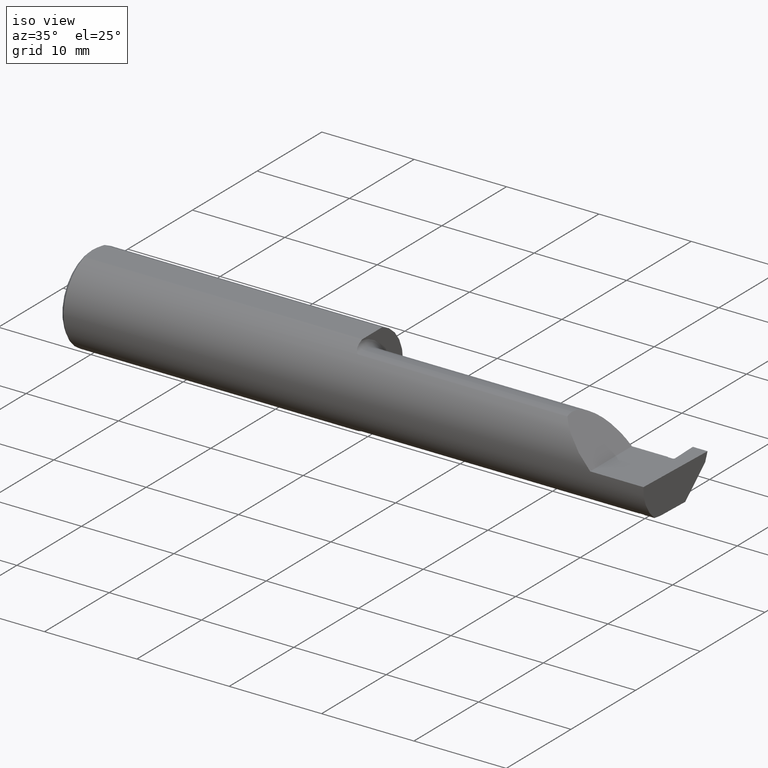
[diagram: clean part render]
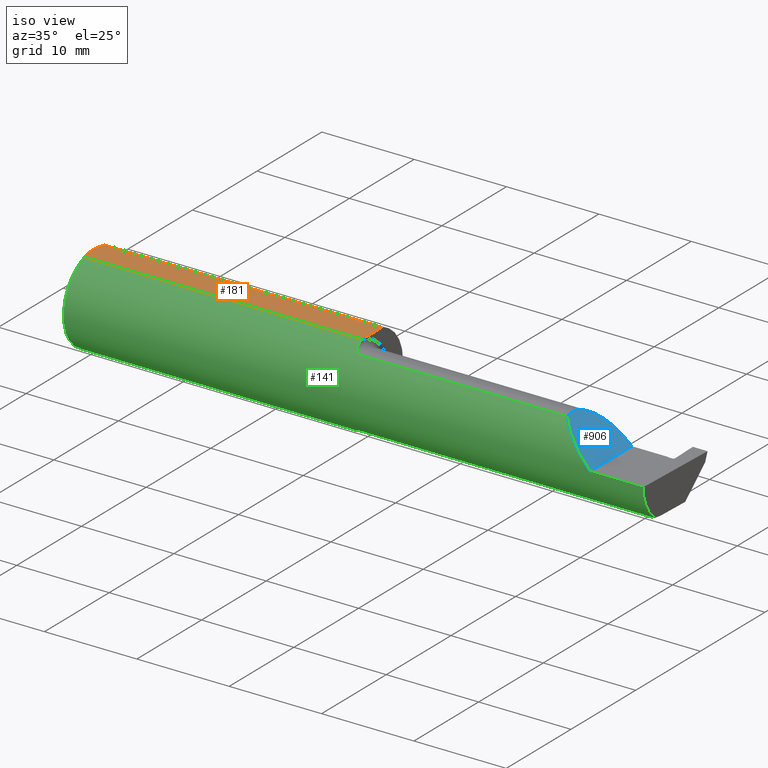
[diagram: same view with three faces highlighted in distinct colors, each labeled with its STEP entity id]
A machine part, iso view with three faces highlighted in distinct colors.
Their STEP definitions:

[orange] entity #181 — the highlighted planar face has unit normal (0, -0, 1).
#9 = CARTESIAN_POINT ( 'NONE',  ( 0.005916828623699125177, 0.02060071390057613763, 0.1773499999999999799 ) ) ;
#31 = LINE ( 'NONE', #1006, #455 ) ;
#52 = CARTESIAN_POINT ( 'NONE',  ( 2.500000000000000000, -0.1873500000000000165, 0.1773499999999999799 ) ) ;
#53 = VERTEX_POINT ( 'NONE', #985 ) ;
#87 = CARTESIAN_POINT ( 'NONE',  ( 0.009346310357820472939, 0.04072930668827419443, 0.1773500000000000354 ) ) ;
#98 = CARTESIAN_POINT ( 'NONE',  ( 0.01499999999999756042, 0.06039039658754215278, 0.1773499999999999799 ) ) ;
#126 = VERTEX_POINT ( 'NONE', #456 ) ;
#136 = VECTOR ( 'NONE', #512, 39.37007874015748143 ) ;
#167 = CARTESIAN_POINT ( 'NONE',  ( 0.004999999999999835305, 2.941982542510190671E-17, 0.1773499999999999799 ) ) ;
#176 = LINE ( 'NONE', #339, #136 ) ;
#181 = ADVANCED_FACE ( 'NONE', ( #291 ), #783, .T. ) ;
#225 = CARTESIAN_POINT ( 'NONE',  ( 0.005896899252109314912, -0.02043863390046160924, 0.1773500000000000354 ) ) ;
#291 = FACE_OUTER_BOUND ( 'NONE', #649, .T. ) ;
#295 = ORIENTED_EDGE ( 'NONE', *, *, #583, .T. ) ;
#312 = CARTESIAN_POINT ( 'NONE',  ( 0.009318557230853204490, -0.04061090184993776386, 0.1773499999999999799 ) ) ;
#319 = AXIS2_PLACEMENT_3D ( 'NONE', #52, #621, #537 ) ;
#326 = B_SPLINE_CURVE_WITH_KNOTS ( 'NONE', 3,
 ( #484, #817, #87, #9, #898, #167 ),
 .UNSPECIFIED., .F., .F.,
 ( 4, 2, 4 ),
 ( 0.004207325536406422359, 0.004979129323161655095, 0.005750933109916887831 ),
 .UNSPECIFIED. ) ;
#339 = CARTESIAN_POINT ( 'NONE',  ( 1.199999999999999956, -0.1873500000000000165, 0.1773499999999999799 ) ) ;
#342 = ORIENTED_EDGE ( 'NONE', *, *, #794, .T. ) ;
#353 = CARTESIAN_POINT ( 'NONE',  ( 1.199999999999999956, -0.06039039658753695555, 0.1773499999999999799 ) ) ;
#384 = CARTESIAN_POINT ( 'NONE',  ( 0.004999999999999835305, 2.941982542510190671E-17, 0.1773499999999999799 ) ) ;
#390 = EDGE_CURVE ( 'NONE', #501, #126, #176, .T. ) ;
#455 = VECTOR ( 'NONE', #1000, 39.37007874015748143 ) ;
#456 = CARTESIAN_POINT ( 'NONE',  ( 1.199999999999999956, 0.06039039658754216666, 0.1773499999999999799 ) ) ;
#458 = VERTEX_POINT ( 'NONE', #98 ) ;
#482 = ORIENTED_EDGE ( 'NONE', *, *, #508, .T. ) ;
#484 = CARTESIAN_POINT ( 'NONE',  ( 0.01499999999999756042, 0.06039039658754215278, 0.1773499999999999799 ) ) ;
#490 = VECTOR ( 'NONE', #547, 39.37007874015748143 ) ;
#501 = VERTEX_POINT ( 'NONE', #353 ) ;
#508 = EDGE_CURVE ( 'NONE', #126, #458, #31, .T. ) ;
#512 = DIRECTION ( 'NONE',  ( -0.000000000000000000, 1.000000000000000000, 0.000000000000000000 ) ) ;
#530 = ORIENTED_EDGE ( 'NONE', *, *, #785, .T. ) ;
#536 = CARTESIAN_POINT ( 'NONE',  ( 0.000000000000000000, -0.06039039658753697637, 0.1773499999999999799 ) ) ;
#537 = DIRECTION ( 'NONE',  ( 1.000000000000000000, 0.000000000000000000, -0.000000000000000000 ) ) ;
#547 = DIRECTION ( 'NONE',  ( 1.000000000000000000, 0.000000000000000000, 0.000000000000000000 ) ) ;
#565 = CARTESIAN_POINT ( 'NONE',  ( 0.01186375298701897348, -0.05066077215909271098, 0.1773499999999999799 ) ) ;
#583 = EDGE_CURVE ( 'NONE', #53, #501, #616, .T. ) ;
#616 = LINE ( 'NONE', #536, #490 ) ;
#621 = DIRECTION ( 'NONE',  ( 0.000000000000000000, -0.000000000000000000, 1.000000000000000000 ) ) ;
#649 = EDGE_LOOP ( 'NONE', ( #295, #867, #482, #342, #530 ) ) ;
#723 = B_SPLINE_CURVE_WITH_KNOTS ( 'NONE', 3,
 ( #955, #724, #225, #312, #565, #894 ),
 .UNSPECIFIED., .F., .F.,
 ( 4, 2, 4 ),
 ( 0.005750933109916887831, 0.006521788775031543001, 0.007292644440146199038 ),
 .UNSPECIFIED. ) ;
#724 = CARTESIAN_POINT ( 'NONE',  ( 0.004999999999999833571, -0.01026662907944655458, 0.1773499999999999521 ) ) ;
#783 = PLANE ( 'NONE',  #319 ) ;
#785 = EDGE_CURVE ( 'NONE', #952, #53, #723, .T. ) ;
#794 = EDGE_CURVE ( 'NONE', #458, #952, #326, .T. ) ;
#817 = CARTESIAN_POINT ( 'NONE',  ( 0.01185291896084217714, 0.05062716160312498437, 0.1773499999999999521 ) ) ;
#867 = ORIENTED_EDGE ( 'NONE', *, *, #390, .T. ) ;
#894 = CARTESIAN_POINT ( 'NONE',  ( 0.01499999999999999944, -0.06039039658753697637, 0.1773499999999999799 ) ) ;
#898 = CARTESIAN_POINT ( 'NONE',  ( 0.004999999999999839642, 0.01027925662263861305, 0.1773499999999999799 ) ) ;
#952 = VERTEX_POINT ( 'NONE', #384 ) ;
#955 = CARTESIAN_POINT ( 'NONE',  ( 0.004999999999999835305, 2.941982542510190671E-17, 0.1773499999999999799 ) ) ;
#985 = CARTESIAN_POINT ( 'NONE',  ( 0.01499999999999999944, -0.06039039658753697637, 0.1773499999999999799 ) ) ;
#1000 = DIRECTION ( 'NONE',  ( -1.000000000000000000, -0.000000000000000000, -0.000000000000000000 ) ) ;
#1006 = CARTESIAN_POINT ( 'NONE',  ( 0.000000000000000000, 0.06039039658753697637, 0.1773499999999999799 ) ) ;

[blue] entity #906 — the highlighted planar face has unit normal (-0.7071, 0, -0.7071).
#46 = CARTESIAN_POINT ( 'NONE',  ( 2.113883229301070088, -0.1172600179964004286, 0.1461167706989304482 ) ) ;
#88 = VECTOR ( 'NONE', #206, 39.37007874015748143 ) ;
#111 = ORIENTED_EDGE ( 'NONE', *, *, #603, .T. ) ;
#132 = CARTESIAN_POINT ( 'NONE',  ( 2.260000000000000231, -0.2000000000000000111, 2.939152317953647352E-17 ) ) ;
#147 = EDGE_CURVE ( 'NONE', #209, #351, #1016, .T. ) ;
#180 = CARTESIAN_POINT ( 'NONE',  ( 2.260000000000000231, -0.1873499999999999888, 2.939152317953647352E-17 ) ) ;
#184 = ORIENTED_EDGE ( 'NONE', *, *, #276, .F. ) ;
#205 = CARTESIAN_POINT ( 'NONE',  ( 2.260000000000000231, -0.2000000000000000111, 2.939152317953647352E-17 ) ) ;
#206 = DIRECTION ( 'NONE',  ( -0.000000000000000000, 1.000000000000000000, -0.000000000000000000 ) ) ;
#209 = VERTEX_POINT ( 'NONE', #221 ) ;
#221 = CARTESIAN_POINT ( 'NONE',  ( 2.110000000000000764, -0.08334999999999996578, 0.1499999999999999667 ) ) ;
#235 = CARTESIAN_POINT ( 'NONE',  ( 2.260000000000000231, -0.1873499999999999888, 2.939152317953647352E-17 ) ) ;
#276 = EDGE_CURVE ( 'NONE', #549, #933, #314, .T. ) ;
#314 =( BOUNDED_CURVE ( )  B_SPLINE_CURVE ( 3, ( #235, #826, #481, #977 ),
 .UNSPECIFIED., .F., .T. ) 
 B_SPLINE_CURVE_WITH_KNOTS ( ( 4, 4 ),
 ( 4.712388980384688786, 5.606916381293138407 ),
 .UNSPECIFIED. ) 
 CURVE ( )  GEOMETRIC_REPRESENTATION_ITEM ( )  RATIONAL_B_SPLINE_CURVE ( ( 1.000000000000000000, 0.9344226172588800949, 0.9344226172588800949, 1.000000000000000000 ) ) 
 REPRESENTATION_ITEM ( '' )  );
#325 = ORIENTED_EDGE ( 'NONE', *, *, #330, .F. ) ;
#330 = EDGE_CURVE ( 'NONE', #933, #209, #424, .T. ) ;
#351 = VERTEX_POINT ( 'NONE', #398 ) ;
#364 = LINE ( 'NONE', #132, #88 ) ;
#398 = CARTESIAN_POINT ( 'NONE',  ( 2.260000000000000231, 0.06664999999999998703, 2.939152317953647352E-17 ) ) ;
#424 =( BOUNDED_CURVE ( )  B_SPLINE_CURVE ( 3, ( #561, #812, #476, #889 ),
 .UNSPECIFIED., .F., .F. ) 
 B_SPLINE_CURVE_WITH_KNOTS ( ( 4, 4 ),
 ( 6.055147272130144032, 6.283185307179586232 ),
 .UNSPECIFIED. ) 
 CURVE ( )  GEOMETRIC_REPRESENTATION_ITEM ( )  RATIONAL_B_SPLINE_CURVE ( ( 1.000000000000000000, 0.9956712472009929815, 0.9956712472009929815, 1.000000000000000000 ) ) 
 REPRESENTATION_ITEM ( '' )  );
#465 = CARTESIAN_POINT ( 'NONE',  ( 2.260000000000000231, 0.06664999999999998703, 2.939152317953647352E-17 ) ) ;
#466 = ORIENTED_EDGE ( 'NONE', *, *, #147, .F. ) ;
#476 = CARTESIAN_POINT ( 'NONE',  ( 2.110000000000000320, -0.09477667630339407789, 0.1499999999999999667 ) ) ;
#481 = CARTESIAN_POINT ( 'NONE',  ( 2.150065971957466182, -0.1623470442677541203, 0.1099340280425339378 ) ) ;
#549 = VERTEX_POINT ( 'NONE', #180 ) ;
#561 = CARTESIAN_POINT ( 'NONE',  ( 2.113883229301070088, -0.1172600179964004286, 0.1461167706989304482 ) ) ;
#603 = EDGE_CURVE ( 'NONE', #549, #351, #364, .T. ) ;
#628 = FACE_OUTER_BOUND ( 'NONE', #810, .T. ) ;
#631 = CARTESIAN_POINT ( 'NONE',  ( 2.172132034355964691, 0.06665000000000009805, 0.08786796564403566434 ) ) ;
#637 = PLANE ( 'NONE',  #683 ) ;
#683 = AXIS2_PLACEMENT_3D ( 'NONE', #205, #1022, #963 ) ;
#698 = CARTESIAN_POINT ( 'NONE',  ( 2.110000000000000764, 0.004517965644035819121, 0.1499999999999999944 ) ) ;
#810 = EDGE_LOOP ( 'NONE', ( #325, #184, #111, #466 ) ) ;
#812 = CARTESIAN_POINT ( 'NONE',  ( 2.111300037307155986, -0.1061291577212407494, 0.1486999626928445783 ) ) ;
#826 = CARTESIAN_POINT ( 'NONE',  ( 2.202189699843949189, -0.1873500000000000443, 0.05781030015605114619 ) ) ;
#889 = CARTESIAN_POINT ( 'NONE',  ( 2.110000000000000764, -0.08334999999999996578, 0.1499999999999999667 ) ) ;
#906 = ADVANCED_FACE ( 'NONE', ( #628 ), #637, .F. ) ;
#933 = VERTEX_POINT ( 'NONE', #46 ) ;
#956 = CARTESIAN_POINT ( 'NONE',  ( 2.110000000000000764, -0.08334999999999996578, 0.1499999999999999667 ) ) ;
#963 = DIRECTION ( 'NONE',  ( -0.7071067811865454633, 0.000000000000000000, 0.7071067811865496822 ) ) ;
#977 = CARTESIAN_POINT ( 'NONE',  ( 2.113883229301070088, -0.1172600179964004286, 0.1461167706989304482 ) ) ;
#1016 =( BOUNDED_CURVE ( )  B_SPLINE_CURVE ( 3, ( #956, #698, #631, #465 ),
 .UNSPECIFIED., .F., .T. ) 
 B_SPLINE_CURVE_WITH_KNOTS ( ( 4, 4 ),
 ( 0.000000000000000000, 1.570796326794897446 ),
 .UNSPECIFIED. ) 
 CURVE ( )  GEOMETRIC_REPRESENTATION_ITEM ( )  RATIONAL_B_SPLINE_CURVE ( ( 1.000000000000000000, 0.8047378541243648264, 0.8047378541243648264, 1.000000000000000000 ) ) 
 REPRESENTATION_ITEM ( '' )  );
#1022 = DIRECTION ( 'NONE',  ( -0.7071067811865496822, 0.000000000000000000, -0.7071067811865454633 ) ) ;

[green] entity #141 — the highlighted cylindrical surface (partial cylindrical patch) has radius 4.7587 mm, axis along (-1, -0, -0).
#13 = CARTESIAN_POINT ( 'NONE',  ( 1.199999999999999956, -0.06851976604679065053, 0.1743704796142198643 ) ) ;
#18 = DIRECTION ( 'NONE',  ( -1.000000000000000000, -0.000000000000000000, -0.000000000000000000 ) ) ;
#23 = ORIENTED_EDGE ( 'NONE', *, *, #100, .F. ) ;
#29 = ORIENTED_EDGE ( 'NONE', *, *, #459, .T. ) ;
#31 = LINE ( 'NONE', #1006, #455 ) ;
#38 = VERTEX_POINT ( 'NONE', #658 ) ;
#41 = CARTESIAN_POINT ( 'NONE',  ( 1.225000000000000089, -0.1172600179964006922, -0.1461167706989302817 ) ) ;
#44 = EDGE_CURVE ( 'NONE', #501, #667, #1021, .T. ) ;
#46 = CARTESIAN_POINT ( 'NONE',  ( 2.113883229301070088, -0.1172600179964004286, 0.1461167706989304482 ) ) ;
#48 = FACE_OUTER_BOUND ( 'NONE', #802, .T. ) ;
#49 = ORIENTED_EDGE ( 'NONE', *, *, #764, .F. ) ;
#53 = VERTEX_POINT ( 'NONE', #985 ) ;
#55 = EDGE_CURVE ( 'NONE', #416, #442, #477, .T. ) ;
#61 = VERTEX_POINT ( 'NONE', #77 ) ;
#64 = CARTESIAN_POINT ( 'NONE',  ( 2.487009473749072441, -0.1873499999999999055, 0.000000000000000000 ) ) ;
#72 = ORIENTED_EDGE ( 'NONE', *, *, #130, .F. ) ;
#77 = CARTESIAN_POINT ( 'NONE',  ( 1.199999999999999956, -0.06851976604679065053, -0.1743704796142198643 ) ) ;
#79 = VERTEX_POINT ( 'NONE', #231 ) ;
#84 = VERTEX_POINT ( 'NONE', #557 ) ;
#93 = CARTESIAN_POINT ( 'NONE',  ( 1.199999999999999956, -0.07359296612170562746, -0.1723769398647691520 ) ) ;
#95 = CARTESIAN_POINT ( 'NONE',  ( 1.215551048069661411, -0.1140002044565612965, -0.1486821290834928755 ) ) ;
#98 = CARTESIAN_POINT ( 'NONE',  ( 0.01499999999999756042, 0.06039039658754215278, 0.1773499999999999799 ) ) ;
#100 = EDGE_CURVE ( 'NONE', #489, #1020, #807, .T. ) ;
#104 = AXIS2_PLACEMENT_3D ( 'NONE', #365, #294, #704 ) ;
#122 = CARTESIAN_POINT ( 'NONE',  ( 2.438937601851351999, -0.1209685768375164533, -0.1430616158090836920 ) ) ;
#126 = VERTEX_POINT ( 'NONE', #456 ) ;
#130 = EDGE_CURVE ( 'NONE', #84, #608, #925, .T. ) ;
#133 = CARTESIAN_POINT ( 'NONE',  ( 1.209249444250374061, -0.1073163636891286965, 0.1536158790136664398 ) ) ;
#137 = CIRCLE ( 'NONE', #919, 0.1873499999999999888 ) ;
#139 = CARTESIAN_POINT ( 'NONE',  ( 1.204075010165368775, -0.09778159395695873446, 0.1599914159748310472 ) ) ;
#141 = ADVANCED_FACE ( 'NONE', ( #48 ), #143, .T. ) ;
#143 = CYLINDRICAL_SURFACE ( 'NONE', #104, 0.1873499999999999888 ) ;
#144 = ORIENTED_EDGE ( 'NONE', *, *, #514, .F. ) ;
#145 = LINE ( 'NONE', #797, #870 ) ;
#146 = CARTESIAN_POINT ( 'NONE',  ( 2.485494735025390867, -0.1873500000000000443, -0.05781030015605120170 ) ) ;
#157 = ORIENTED_EDGE ( 'NONE', *, *, #508, .F. ) ;
#161 = EDGE_CURVE ( 'NONE', #674, #79, #644, .T. ) ;
#165 = CARTESIAN_POINT ( 'NONE',  ( 1.220804171164107110, -0.1167508198888951437, -0.1465276362740036420 ) ) ;
#166 = VERTEX_POINT ( 'NONE', #64 ) ;
#168 = VECTOR ( 'NONE', #719, 39.37007874015748143 ) ;
#169 = AXIS2_PLACEMENT_3D ( 'NONE', #763, #331, #503 ) ;
#180 = CARTESIAN_POINT ( 'NONE',  ( 2.260000000000000231, -0.1873499999999999888, 2.939152317953647352E-17 ) ) ;
#187 = VECTOR ( 'NONE', #18, 39.37007874015748143 ) ;
#208 = CARTESIAN_POINT ( 'NONE',  ( 2.422025638076227505, -0.1199515203393081014, -0.1439154448566538069 ) ) ;
#226 = CARTESIAN_POINT ( 'NONE',  ( 1.216924463282974767, -0.1152182125075829483, 0.1477647100440764305 ) ) ;
#227 = ORIENTED_EDGE ( 'NONE', *, *, #936, .F. ) ;
#229 = CARTESIAN_POINT ( 'NONE',  ( 1.199999999999999956, -0.06851976604679065053, -0.1743704796142198643 ) ) ;
#231 = CARTESIAN_POINT ( 'NONE',  ( 2.422025638076227505, -0.1199515203393081014, -0.1439154448566538069 ) ) ;
#232 = CARTESIAN_POINT ( 'NONE',  ( 2.443688705465306921, -0.1181608300328455680, -0.1453938609665317572 ) ) ;
#235 = CARTESIAN_POINT ( 'NONE',  ( 2.260000000000000231, -0.1873499999999999888, 2.939152317953647352E-17 ) ) ;
#241 = CARTESIAN_POINT ( 'NONE',  ( 1.225000000000000089, -0.1172600179964006922, -0.1461167706989302817 ) ) ;
#252 = CARTESIAN_POINT ( 'NONE',  ( 1.222868998470238777, -0.1172600179964008449, -0.1461167706989302262 ) ) ;
#260 = CARTESIAN_POINT ( 'NONE',  ( 1.199999999999999734, -0.07360907839729498303, 0.1723706084642000480 ) ) ;
#261 = ORIENTED_EDGE ( 'NONE', *, *, #687, .F. ) ;
#265 = ORIENTED_EDGE ( 'NONE', *, *, #746, .F. ) ;
#268 = CARTESIAN_POINT ( 'NONE',  ( 2.422025638076227505, -0.1199515203393081014, -0.1439154448566538069 ) ) ;
#272 = ORIENTED_EDGE ( 'NONE', *, *, #583, .F. ) ;
#276 = EDGE_CURVE ( 'NONE', #549, #933, #314, .T. ) ;
#285 = CARTESIAN_POINT ( 'NONE',  ( 2.432595539171408472, -0.1205886845299571075, -0.1433820739707696856 ) ) ;
#288 = ORIENTED_EDGE ( 'NONE', *, *, #161, .F. ) ;
#294 = DIRECTION ( 'NONE',  ( -1.000000000000000000, -0.000000000000000000, -0.000000000000000000 ) ) ;
#297 = CARTESIAN_POINT ( 'NONE',  ( 2.437528246080902683, -0.1208843235918087011, -0.1431328578062439072 ) ) ;
#307 = CARTESIAN_POINT ( 'NONE',  ( 2.438937601851351999, -0.1209685768375164533, -0.1430616158090836920 ) ) ;
#308 = DIRECTION ( 'NONE',  ( 0.000000000000000000, 0.000000000000000000, -1.000000000000000000 ) ) ;
#314 =( BOUNDED_CURVE ( )  B_SPLINE_CURVE ( 3, ( #235, #826, #481, #977 ),
 .UNSPECIFIED., .F., .T. ) 
 B_SPLINE_CURVE_WITH_KNOTS ( ( 4, 4 ),
 ( 4.712388980384688786, 5.606916381293138407 ),
 .UNSPECIFIED. ) 
 CURVE ( )  GEOMETRIC_REPRESENTATION_ITEM ( )  RATIONAL_B_SPLINE_CURVE ( ( 1.000000000000000000, 0.9344226172588800949, 0.9344226172588800949, 1.000000000000000000 ) ) 
 REPRESENTATION_ITEM ( '' )  );
#321 = EDGE_CURVE ( 'NONE', #61, #126, #966, .T. ) ;
#327 = CARTESIAN_POINT ( 'NONE',  ( 2.485002117657001186, -0.1623470442677541481, -0.1099340280425338545 ) ) ;
#331 = DIRECTION ( 'NONE',  ( -1.000000000000000000, -0.000000000000000000, -0.000000000000000000 ) ) ;
#353 = CARTESIAN_POINT ( 'NONE',  ( 1.199999999999999956, -0.06039039658753695555, 0.1773499999999999799 ) ) ;
#365 = CARTESIAN_POINT ( 'NONE',  ( 0.000000000000000000, 0.000000000000000000, 0.000000000000000000 ) ) ;
#373 = CARTESIAN_POINT ( 'NONE',  ( 2.426253567114299958, -0.1202070058350591109, -0.1437022123786430017 ) ) ;
#378 = CARTESIAN_POINT ( 'NONE',  ( 2.436118896717735183, -0.1207999448597423947, -0.1432040782660390643 ) ) ;
#386 = CARTESIAN_POINT ( 'NONE',  ( 1.199999999999999956, -0.06851976604679065053, 0.1743704796142198643 ) ) ;
#387 = CARTESIAN_POINT ( 'NONE',  ( 1.199999999999999956, 0.000000000000000000, 0.000000000000000000 ) ) ;
#391 = DIRECTION ( 'NONE',  ( 0.000000000000000000, 0.000000000000000000, 1.000000000000000000 ) ) ;
#393 = CARTESIAN_POINT ( 'NONE',  ( 1.828500000000000236, -0.1172600179964007477, -0.1461167706989302817 ) ) ;
#397 = CARTESIAN_POINT ( 'NONE',  ( 1.201062863587535334, -0.08334999999999988252, -0.1677879614275112896 ) ) ;
#399 = CARTESIAN_POINT ( 'NONE',  ( 1.211340974786206948, -0.1102890168945988986, -0.1514792188789463590 ) ) ;
#410 = CARTESIAN_POINT ( 'NONE',  ( 1.217163414264744725, -0.1151183835841408098, -0.1478135984872520903 ) ) ;
#412 = ORIENTED_EDGE ( 'NONE', *, *, #917, .F. ) ;
#416 = VERTEX_POINT ( 'NONE', #41 ) ;
#422 = ORIENTED_EDGE ( 'NONE', *, *, #1032, .F. ) ;
#432 = CARTESIAN_POINT ( 'NONE',  ( 1.201062863587535334, -0.08334999999999988252, -0.1677879614275112896 ) ) ;
#437 = CARTESIAN_POINT ( 'NONE',  ( 2.485628535317038867, -0.1172600179964007477, -0.1461167706989302817 ) ) ;
#442 = VERTEX_POINT ( 'NONE', #432 ) ;
#455 = VECTOR ( 'NONE', #1000, 39.37007874015748143 ) ;
#456 = CARTESIAN_POINT ( 'NONE',  ( 1.199999999999999956, 0.06039039658754216666, 0.1773499999999999799 ) ) ;
#458 = VERTEX_POINT ( 'NONE', #98 ) ;
#459 = EDGE_CURVE ( 'NONE', #166, #549, #995, .T. ) ;
#477 = B_SPLINE_CURVE_WITH_KNOTS ( 'NONE', 3,
 ( #241, #252, #165, #410, #95, #399, #813, #734, #567, #636, #896, #962 ),
 .UNSPECIFIED., .F., .F.,
 ( 4, 2, 2, 2, 2, 4 ),
 ( 1.967976973692733563E-07, 0.0001599896235275590688, 0.0003197824493577488278, 0.0006393681010181284001, 0.0009589537526785085145, 0.001278539404338888737 ),
 .UNSPECIFIED. ) ;
#478 = CARTESIAN_POINT ( 'NONE',  ( 1.199999999999999956, 0.000000000000000000, 0.000000000000000000 ) ) ;
#481 = CARTESIAN_POINT ( 'NONE',  ( 2.150065971957466182, -0.1623470442677541203, 0.1099340280425339378 ) ) ;
#489 = VERTEX_POINT ( 'NONE', #437 ) ;
#490 = VECTOR ( 'NONE', #547, 39.37007874015748143 ) ;
#499 = DIRECTION ( 'NONE',  ( 0.000000000000000000, 0.000000000000000000, -1.000000000000000000 ) ) ;
#500 = CARTESIAN_POINT ( 'NONE',  ( 1.201062863587533780, -0.08334999999998816966, 0.1677879614275171183 ) ) ;
#501 = VERTEX_POINT ( 'NONE', #353 ) ;
#503 = DIRECTION ( 'NONE',  ( 0.000000000000000000, 0.000000000000000000, 1.000000000000000000 ) ) ;
#508 = EDGE_CURVE ( 'NONE', #126, #458, #31, .T. ) ;
#514 = EDGE_CURVE ( 'NONE', #79, #38, #533, .T. ) ;
#517 = CARTESIAN_POINT ( 'NONE',  ( 2.420647357912158348, -0.1172600179964005812, -0.1461167706989303094 ) ) ;
#525 = CARTESIAN_POINT ( 'NONE',  ( 2.444191707502853195, -0.1172600179964005812, -0.1461167706989303372 ) ) ;
#533 = B_SPLINE_CURVE_WITH_KNOTS ( 'NONE', 3,
 ( #268, #664, #990, #517 ),
 .UNSPECIFIED., .F., .F.,
 ( 4, 4 ),
 ( 7.721468349589113842E-18, 9.500012044332889960E-05 ),
 .UNSPECIFIED. ) ;
#536 = CARTESIAN_POINT ( 'NONE',  ( 0.000000000000000000, -0.06039039658753697637, 0.1773499999999999799 ) ) ;
#540 = ORIENTED_EDGE ( 'NONE', *, *, #55, .F. ) ;
#543 = CARTESIAN_POINT ( 'NONE',  ( 1.220724556588812737, -0.1172600179964064376, 0.1461167706989258130 ) ) ;
#547 = DIRECTION ( 'NONE',  ( 1.000000000000000000, 0.000000000000000000, 0.000000000000000000 ) ) ;
#549 = VERTEX_POINT ( 'NONE', #180 ) ;
#553 = CARTESIAN_POINT ( 'NONE',  ( 1.201062863587533780, -0.08334999999998816966, 0.1677879614275171183 ) ) ;
#557 = CARTESIAN_POINT ( 'NONE',  ( 1.201062863587533780, -0.08334999999998816966, 0.1677879614275171183 ) ) ;
#558 = CARTESIAN_POINT ( 'NONE',  ( 2.443071615181789280, -0.1190227122284140127, -0.1446875610761130249 ) ) ;
#559 = AXIS2_PLACEMENT_3D ( 'NONE', #387, #720, #308 ) ;
#567 = CARTESIAN_POINT ( 'NONE',  ( 1.204475235432781233, -0.09757364237049405420, -0.1599863467203317680 ) ) ;
#583 = EDGE_CURVE ( 'NONE', #53, #501, #616, .T. ) ;
#586 = CARTESIAN_POINT ( 'NONE',  ( 1.200344683557281300, -0.07855153123406184712, 0.1701716388274757408 ) ) ;
#587 = ORIENTED_EDGE ( 'NONE', *, *, #321, .F. ) ;
#604 = CARTESIAN_POINT ( 'NONE',  ( 2.440211079559179819, -0.1210447068979842722, -0.1429972425317564688 ) ) ;
#608 = VERTEX_POINT ( 'NONE', #790 ) ;
#612 = CARTESIAN_POINT ( 'NONE',  ( 2.428367553115081456, -0.1203343260141741949, -0.1435955169311161073 ) ) ;
#613 =( BOUNDED_CURVE ( )  B_SPLINE_CURVE ( 3, ( #1040, #327, #146, #651 ),
 .UNSPECIFIED., .F., .T. ) 
 B_SPLINE_CURVE_WITH_KNOTS ( ( 4, 4 ),
 ( 6.032366188922103412, 6.926893589830550368 ),
 .UNSPECIFIED. ) 
 CURVE ( )  GEOMETRIC_REPRESENTATION_ITEM ( )  RATIONAL_B_SPLINE_CURVE ( ( 1.000000000000000000, 0.9344226172588803170, 0.9344226172588803170, 1.000000000000000000 ) ) 
 REPRESENTATION_ITEM ( '' )  );
#616 = LINE ( 'NONE', #536, #490 ) ;
#619 = VERTEX_POINT ( 'NONE', #1043 ) ;
#622 = EDGE_CURVE ( 'NONE', #489, #166, #613, .T. ) ;
#636 = CARTESIAN_POINT ( 'NONE',  ( 1.202380638915944600, -0.09060738690120609395, -0.1640321561807270845 ) ) ;
#642 = CARTESIAN_POINT ( 'NONE',  ( 2.444191707502853195, -0.1172600179964005812, -0.1461167706989303372 ) ) ;
#644 = B_SPLINE_CURVE_WITH_KNOTS ( 'NONE', 3,
 ( #1019, #297, #378, #1031, #285, #795, #612, #373, #938, #208 ),
 .UNSPECIFIED., .F., .F.,
 ( 4, 3, 3, 4 ),
 ( 0.000000000000000000, 0.0001077215152115850588, 0.0002693038001882088047, 0.0004308860970000558902 ),
 .UNSPECIFIED. ) ;
#646 = CARTESIAN_POINT ( 'NONE',  ( 1.200346246588684940, -0.07856197451716394331, -0.1701664510438046507 ) ) ;
#651 = CARTESIAN_POINT ( 'NONE',  ( 2.487009473749072441, -0.1873499999999999055, 0.000000000000000000 ) ) ;
#658 = CARTESIAN_POINT ( 'NONE',  ( 2.420647357912158348, -0.1172600179964005812, -0.1461167706989303094 ) ) ;
#664 = CARTESIAN_POINT ( 'NONE',  ( 2.421567443531885022, -0.1190608260628878007, -0.1446578261397784004 ) ) ;
#667 = VERTEX_POINT ( 'NONE', #386 ) ;
#674 = VERTEX_POINT ( 'NONE', #307 ) ;
#687 = EDGE_CURVE ( 'NONE', #608, #933, #976, .T. ) ;
#690 = CARTESIAN_POINT ( 'NONE',  ( 2.441381938566085541, -0.1204606180674395594, -0.1434926334386969204 ) ) ;
#696 = DIRECTION ( 'NONE',  ( -1.000000000000000000, -0.000000000000000000, -0.000000000000000000 ) ) ;
#704 = DIRECTION ( 'NONE',  ( 0.000000000000000000, 0.000000000000000000, 1.000000000000000000 ) ) ;
#711 = B_SPLINE_CURVE_WITH_KNOTS ( 'NONE', 3,
 ( #13, #260, #586, #500 ),
 .UNSPECIFIED., .F., .F.,
 ( 4, 4 ),
 ( 4.423516731080792778E-05, 0.0004561457252213476873 ),
 .UNSPECIFIED. ) ;
#719 = DIRECTION ( 'NONE',  ( 1.000000000000000000, 0.000000000000000000, 0.000000000000000000 ) ) ;
#720 = DIRECTION ( 'NONE',  ( 1.000000000000000000, 0.000000000000000000, 0.000000000000000000 ) ) ;
#734 = CARTESIAN_POINT ( 'NONE',  ( 1.205806801261507299, -0.1009700360460132895, -0.1578590382459146291 ) ) ;
#738 = B_SPLINE_CURVE_WITH_KNOTS ( 'NONE', 3,
 ( #397, #646, #93, #229 ),
 .UNSPECIFIED., .F., .F.,
 ( 4, 4 ),
 ( 0.001278539404338888737, 0.001694873732696236101 ),
 .UNSPECIFIED. ) ;
#742 = CARTESIAN_POINT ( 'NONE',  ( 1.828500000000000236, -0.1172600179964007477, 0.1461167706989302817 ) ) ;
#746 = EDGE_CURVE ( 'NONE', #442, #61, #738, .T. ) ;
#762 = ORIENTED_EDGE ( 'NONE', *, *, #44, .F. ) ;
#763 = CARTESIAN_POINT ( 'NONE',  ( 0.01499999999999999944, 0.000000000000000000, 0.000000000000000000 ) ) ;
#764 = EDGE_CURVE ( 'NONE', #458, #619, #137, .T. ) ;
#778 = CARTESIAN_POINT ( 'NONE',  ( 1.211319809340845932, -0.1102629523538398021, 0.1514982751257168136 ) ) ;
#790 = CARTESIAN_POINT ( 'NONE',  ( 1.225000000000000089, -0.1172600179964007477, 0.1461167706989302539 ) ) ;
#795 = CARTESIAN_POINT ( 'NONE',  ( 2.430481538961028587, -0.1204616461839640024, -0.1434888214914039062 ) ) ;
#797 = CARTESIAN_POINT ( 'NONE',  ( 1.828500000000000236, -0.1172600179964007477, -0.1461167706989302817 ) ) ;
#802 = EDGE_LOOP ( 'NONE', ( #23, #905, #29, #815, #261, #72, #422, #762, #272, #1038, #49, #157, #587, #265, #540, #227, #144, #288, #412 ) ) ;
#807 = LINE ( 'NONE', #393, #187 ) ;
#813 = CARTESIAN_POINT ( 'NONE',  ( 1.209228130464466977, -0.1072797540790369208, -0.1536407449207394527 ) ) ;
#815 = ORIENTED_EDGE ( 'NONE', *, *, #276, .T. ) ;
#826 = CARTESIAN_POINT ( 'NONE',  ( 2.202189699843949189, -0.1873500000000000443, 0.05781030015605114619 ) ) ;
#845 = EDGE_CURVE ( 'NONE', #619, #53, #1004, .T. ) ;
#863 = CARTESIAN_POINT ( 'NONE',  ( 1.202158970028690543, -0.09067355718685712884, 0.1641499263364886163 ) ) ;
#870 = VECTOR ( 'NONE', #696, 39.37007874015748143 ) ;
#875 = CARTESIAN_POINT ( 'NONE',  ( 1.225000000000000089, -0.1172600179964007477, 0.1461167706989302539 ) ) ;
#882 = CARTESIAN_POINT ( 'NONE',  ( 0.01499999999999999944, 0.000000000000000000, 0.000000000000000000 ) ) ;
#896 = CARTESIAN_POINT ( 'NONE',  ( 1.201612951569643428, -0.08702537370779850345, -0.1659621904011591986 ) ) ;
#902 = AXIS2_PLACEMENT_3D ( 'NONE', #478, #974, #499 ) ;
#905 = ORIENTED_EDGE ( 'NONE', *, *, #622, .T. ) ;
#917 = EDGE_CURVE ( 'NONE', #1020, #674, #988, .T. ) ;
#919 = AXIS2_PLACEMENT_3D ( 'NONE', #882, #972, #391 ) ;
#921 = DIRECTION ( 'NONE',  ( -1.000000000000000000, -0.000000000000000000, -0.000000000000000000 ) ) ;
#925 = B_SPLINE_CURVE_WITH_KNOTS ( 'NONE', 3,
 ( #553, #863, #139, #133, #778, #226, #543, #875 ),
 .UNSPECIFIED., .F., .F.,
 ( 4, 2, 2, 4 ),
 ( 0.0004561457252213476873, 0.001084815134961810432, 0.001399149839832039555, 0.001713484544702268677 ),
 .UNSPECIFIED. ) ;
#926 = CARTESIAN_POINT ( 'NONE',  ( 3.749399456654646757E-32, -0.1873499999999999888, 3.061616997868384127E-16 ) ) ;
#933 = VERTEX_POINT ( 'NONE', #46 ) ;
#936 = EDGE_CURVE ( 'NONE', #38, #416, #145, .T. ) ;
#938 = CARTESIAN_POINT ( 'NONE',  ( 2.424139595439241734, -0.1200794038297672561, -0.1438088557471794149 ) ) ;
#962 = CARTESIAN_POINT ( 'NONE',  ( 1.201062863587535334, -0.08334999999999988252, -0.1677879614275112896 ) ) ;
#966 = CIRCLE ( 'NONE', #559, 0.1873499999999999888 ) ;
#972 = DIRECTION ( 'NONE',  ( -1.000000000000000000, -0.000000000000000000, -0.000000000000000000 ) ) ;
#974 = DIRECTION ( 'NONE',  ( 1.000000000000000000, 0.000000000000000000, 0.000000000000000000 ) ) ;
#976 = LINE ( 'NONE', #742, #168 ) ;
#977 = CARTESIAN_POINT ( 'NONE',  ( 2.113883229301070088, -0.1172600179964004286, 0.1461167706989304482 ) ) ;
#984 = VECTOR ( 'NONE', #921, 39.37007874015748143 ) ;
#985 = CARTESIAN_POINT ( 'NONE',  ( 0.01499999999999999944, -0.06039039658753697637, 0.1773499999999999799 ) ) ;
#988 = B_SPLINE_CURVE_WITH_KNOTS ( 'NONE', 3,
 ( #525, #232, #558, #690, #604, #122 ),
 .UNSPECIFIED., .F., .F.,
 ( 4, 2, 4 ),
 ( 0.0002908299335239643377, 0.0003847768622404149487, 0.0004787237909568655596 ),
 .UNSPECIFIED. ) ;
#990 = CARTESIAN_POINT ( 'NONE',  ( 2.421107959158336875, -0.1181635923225355239, -0.1453916442042998691 ) ) ;
#995 = LINE ( 'NONE', #926, #984 ) ;
#1000 = DIRECTION ( 'NONE',  ( -1.000000000000000000, -0.000000000000000000, -0.000000000000000000 ) ) ;
#1004 = CIRCLE ( 'NONE', #169, 0.1873499999999999888 ) ;
#1006 = CARTESIAN_POINT ( 'NONE',  ( 0.000000000000000000, 0.06039039658753697637, 0.1773499999999999799 ) ) ;
#1019 = CARTESIAN_POINT ( 'NONE',  ( 2.438937601851351999, -0.1209685768375164533, -0.1430616158090836920 ) ) ;
#1020 = VERTEX_POINT ( 'NONE', #642 ) ;
#1021 = CIRCLE ( 'NONE', #902, 0.1873499999999999888 ) ;
#1031 = CARTESIAN_POINT ( 'NONE',  ( 2.434709553758536149, -0.1207154407313858202, -0.1432752765449339383 ) ) ;
#1032 = EDGE_CURVE ( 'NONE', #667, #84, #711, .T. ) ;
#1038 = ORIENTED_EDGE ( 'NONE', *, *, #845, .F. ) ;
#1040 = CARTESIAN_POINT ( 'NONE',  ( 2.485628535317038867, -0.1172600179964007477, -0.1461167706989302817 ) ) ;
#1043 = CARTESIAN_POINT ( 'NONE',  ( 0.01499999999999999944, 0.000000000000000000, -0.1873499999999999888 ) ) ;